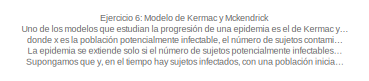
[diagram: root canvas - part 1/2, top left region]
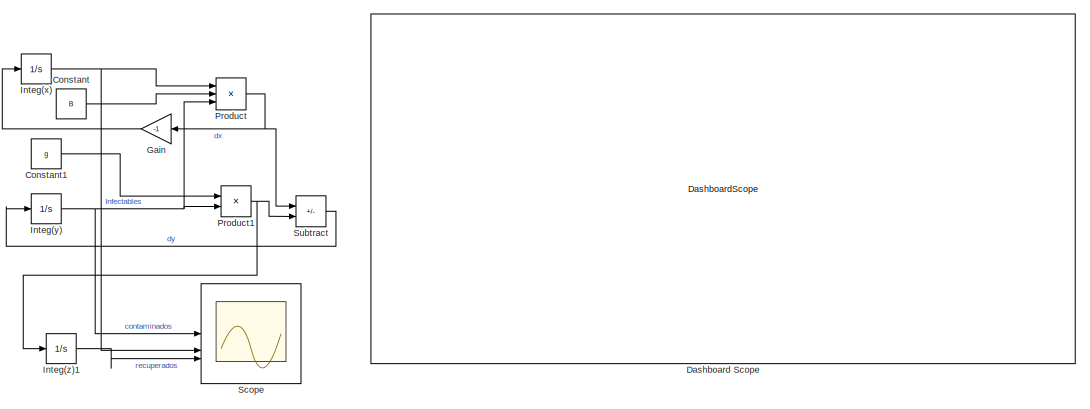
[diagram: root canvas - part 2/2, right side, full height]
MODEL slx_ead1e43d89b3
KIND model
CONFIG AbsTol = auto
CONFIG EnableMultiTasking = off
CONFIG FixedStep = auto
CONFIG MaxStep = auto
CONFIG MinStep = auto
CONFIG RelTol = 1e-3
CONFIG SampleTimeConstraint = Unconstrained
CONFIG SolverName = VariableStepAuto
CONFIG StartTime = 0.0
CONFIG StopTime = 10.0
WORKSPACE source: mxarray member
WORKSPACE B = 0.1
WORKSPACE g = 0.5
WORKSPACE x0 = 70
BLOCK [Constant] Constant
  Value = B
BLOCK [Constant] Constant1
  Value = g
BLOCK [DashboardScope] Dashboard Scope
BLOCK [Gain] Gain
  Gain = -1
BLOCK [Integrator] Integ(x)
  InitialCondition = 60
BLOCK [Integrator] Integ(y)
  InitialCondition = 10
BLOCK [Integrator] Integ(z)1
BLOCK [Product] Product
  Inputs = 3
BLOCK [Product] Product1
BLOCK [Scope] Scope
  Floating = off
  NumInputPorts = 3
  ScopeSpecificationString = Simulink.scopes.TimeScopeBlockCfg('CurrentConfiguration', extmgr.ConfigurationSet(extmgr.Configuration('Core','General UI',true),extmgr.Configuration('Core','Source UI',true),extmgr.Configuration('Sources','WiredSimulink',true),extmgr.Configuration('Visuals','Time Domain',true,'SerializedDisplays',{struct('MinYLimReal','-8.68089','MaxYLimReal','78.128','YLabelReal','','MinYLimMag','0.00000','MaxYL...<+1356ch>
BLOCK [Sum] Subtract
  IconShape = rectangular
  Inputs = +-
ANNOTATION (root): E jercicio 6: Modelo de Kermac y Mckendrick Uno de los modelos que estudian la progresión de una epidemia es el de Kermac y McKendrick: donde x es la población potencialmente infectable, el número de sujetos contaminados los cuales son capaces de transmitir la infección y el número de sujetos enfermos recuperados y no infectables o que han muerto. La epidemia se extiende solo si el número de sujet...<+340ch>
LINE Constant1:1 -> Product1:1
LINE Constant:1 -> Product:2
LINE Gain:1 -> Integ(x):1
NET Integ(x):1 -> Product:1, Scope:2
NET Integ(y):1 -> Product1:2, Product:3, Scope:1
LINE Integ(z)1:1 -> Scope:3
NET Product1:1 -> Integ(z)1:1, Subtract:2
NET Product:1 -> Gain:1, Subtract:1
LINE Subtract:1 -> Integ(y):1
note: NET lines group one-source signal fan-out (src -> all destinations, sorted); 1:1 wires keep LINE
